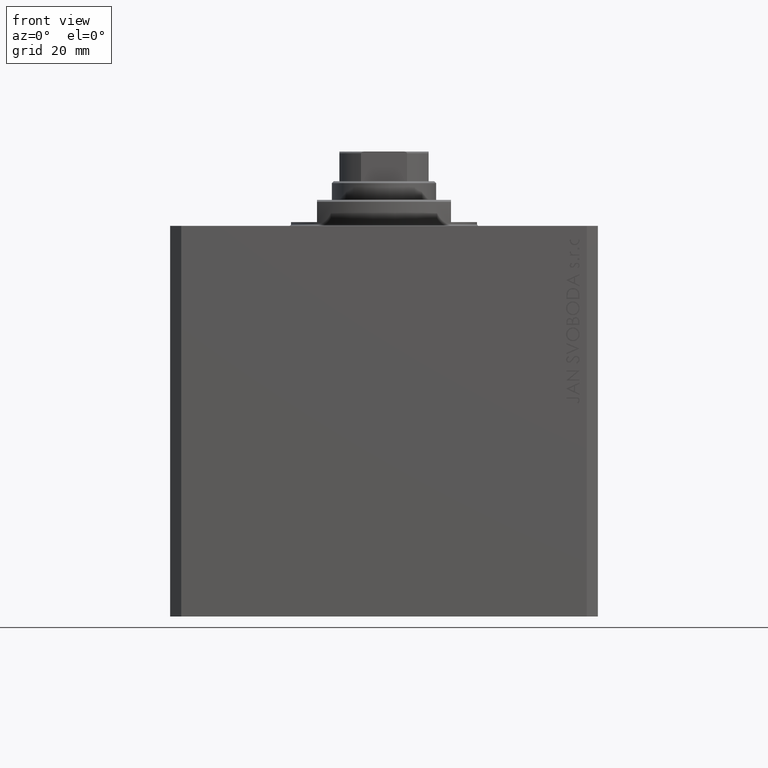
[diagram: clean part render]
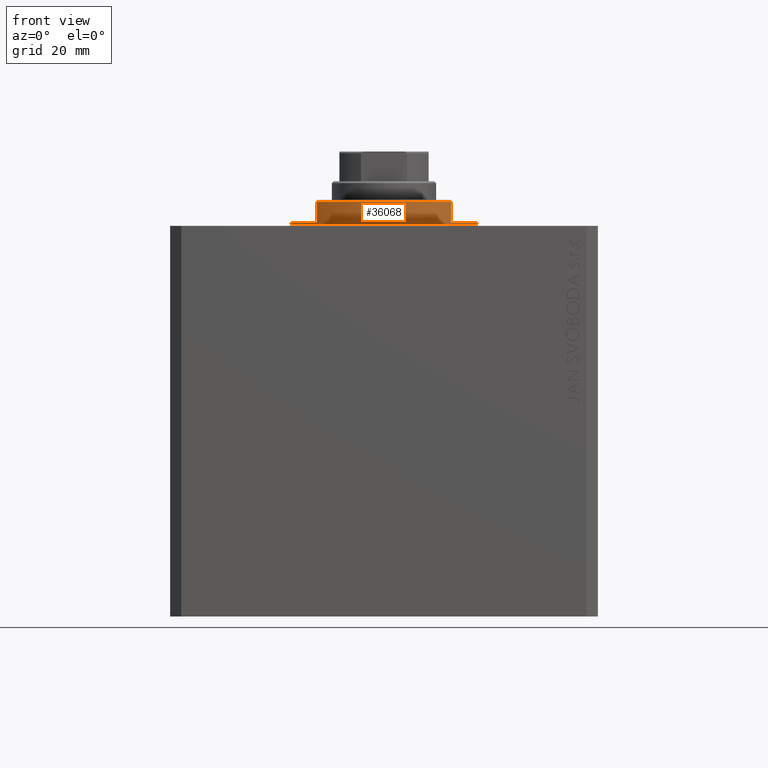
[diagram: same view with one face highlighted and labeled with its STEP entity id]
A machine part, front view. The second image highlights one B-rep face of the part: STEP entity #36068.
In plain terms, the highlighted cylindrical surface (partial cylindrical patch) has radius 25 mm, axis along (0, 0, -1).
Its self-contained STEP definition (entity closure, byte-faithful):
#206 = DIRECTION ( 'NONE',  ( 0.000000000000000000, 0.000000000000000000, -1.000000000000000000 ) ) ;
#396 = AXIS2_PLACEMENT_3D ( 'NONE', #11195, #206, #18812 ) ;
#851 = CARTESIAN_POINT ( 'NONE',  ( -25.00000000000000000, 3.061616997868383043E-15, -0.4999999999999995559 ) ) ;
#1342 = CARTESIAN_POINT ( 'NONE',  ( -18.00000000000000000, -17.34935157289747920, -6.499999999999956479 ) ) ;
#2783 = CIRCLE ( 'NONE', #8882, 25.00000000000000000 ) ;
#3353 = EDGE_CURVE ( 'NONE', #41942, #6463, #46763, .T. ) ;
#4204 = CARTESIAN_POINT ( 'NONE',  ( -18.00000000000000000, -17.34935157289747920, -1.000000000000000000 ) ) ;
#4375 = DIRECTION ( 'NONE',  ( 0.000000000000000000, 0.000000000000000000, -1.000000000000000000 ) ) ;
#4929 = CYLINDRICAL_SURFACE ( 'NONE', #16518, 25.00000000000000000 ) ;
#5080 = ORIENTED_EDGE ( 'NONE', *, *, #26432, .F. ) ;
#6448 = CARTESIAN_POINT ( 'NONE',  ( 25.00000000000000000, 0.000000000000000000, -7.000000000000000000 ) ) ;
#6463 = VERTEX_POINT ( 'NONE', #1342 ) ;
#6840 = VERTEX_POINT ( 'NONE', #17925 ) ;
#7414 = DIRECTION ( 'NONE',  ( 1.000000000000000000, 0.000000000000000000, 0.000000000000000000 ) ) ;
#8882 = AXIS2_PLACEMENT_3D ( 'NONE', #33951, #4375, #15350 ) ;
#9614 = VECTOR ( 'NONE', #9808, 1000.000000000000000 ) ;
#9808 = DIRECTION ( 'NONE',  ( -0.000000000000000000, -0.000000000000000000, 1.000000000000000000 ) ) ;
#11195 = CARTESIAN_POINT ( 'NONE',  ( 0.000000000000000000, 0.000000000000000000, -1.000000000000000000 ) ) ;
#11913 = ORIENTED_EDGE ( 'NONE', *, *, #41272, .T. ) ;
#11921 = CARTESIAN_POINT ( 'NONE',  ( 0.000000000000000000, 0.000000000000000000, -0.4999999999999995559 ) ) ;
#12408 = DIRECTION ( 'NONE',  ( -1.000000000000000000, 0.000000000000000000, 0.000000000000000000 ) ) ;
#12585 = EDGE_CURVE ( 'NONE', #18085, #22283, #22273, .T. ) ;
#13261 = CARTESIAN_POINT ( 'NONE',  ( 18.00000000000000000, -17.34935157289747920, -7.000000000000000000 ) ) ;
#13567 = VERTEX_POINT ( 'NONE', #38850 ) ;
#14056 = CARTESIAN_POINT ( 'NONE',  ( -18.00000000000000000, -17.34935157289747920, -7.000000000000000000 ) ) ;
#15350 = DIRECTION ( 'NONE',  ( -1.000000000000000000, 0.000000000000000000, 0.000000000000000000 ) ) ;
#15707 = EDGE_CURVE ( 'NONE', #23988, #22283, #21361, .T. ) ;
#15839 = ORIENTED_EDGE ( 'NONE', *, *, #15707, .F. ) ;
#16040 = ORIENTED_EDGE ( 'NONE', *, *, #32816, .F. ) ;
#16518 = AXIS2_PLACEMENT_3D ( 'NONE', #19968, #34282, #19490 ) ;
#17771 = VECTOR ( 'NONE', #43313, 1000.000000000000000 ) ;
#17925 = CARTESIAN_POINT ( 'NONE',  ( 18.00000000000000000, -17.34935157289747920, -1.000000000000000000 ) ) ;
#18085 = VERTEX_POINT ( 'NONE', #39398 ) ;
#18812 = DIRECTION ( 'NONE',  ( -1.000000000000000000, 0.000000000000000000, 0.000000000000000000 ) ) ;
#19490 = DIRECTION ( 'NONE',  ( 1.000000000000000000, 0.000000000000000000, 0.000000000000000000 ) ) ;
#19968 = CARTESIAN_POINT ( 'NONE',  ( 0.000000000000000000, 0.000000000000000000, -7.000000000000000000 ) ) ;
#21361 = LINE ( 'NONE', #32812, #17771 ) ;
#22273 = CIRCLE ( 'NONE', #33677, 25.00000000000000000 ) ;
#22283 = VERTEX_POINT ( 'NONE', #851 ) ;
#22686 = CARTESIAN_POINT ( 'NONE',  ( 0.000000000000000000, 0.000000000000000000, -6.499999999999958256 ) ) ;
#23568 = ORIENTED_EDGE ( 'NONE', *, *, #34971, .T. ) ;
#23988 = VERTEX_POINT ( 'NONE', #40572 ) ;
#25034 = CIRCLE ( 'NONE', #41788, 25.00000000000000000 ) ;
#26432 = EDGE_CURVE ( 'NONE', #41942, #23988, #2783, .T. ) ;
#26655 = VECTOR ( 'NONE', #28614, 1000.000000000000000 ) ;
#27690 = LINE ( 'NONE', #6448, #9614 ) ;
#27808 = DIRECTION ( 'NONE',  ( 0.000000000000000000, 0.000000000000000000, -1.000000000000000000 ) ) ;
#28614 = DIRECTION ( 'NONE',  ( 0.000000000000000000, 0.000000000000000000, -1.000000000000000000 ) ) ;
#29496 = VECTOR ( 'NONE', #27808, 1000.000000000000000 ) ;
#31402 = LINE ( 'NONE', #13261, #29496 ) ;
#32666 = ORIENTED_EDGE ( 'NONE', *, *, #3353, .T. ) ;
#32812 = CARTESIAN_POINT ( 'NONE',  ( -25.00000000000000000, 3.061616997868383043E-15, -7.000000000000000000 ) ) ;
#32816 = EDGE_CURVE ( 'NONE', #36252, #6840, #33912, .T. ) ;
#33677 = AXIS2_PLACEMENT_3D ( 'NONE', #11921, #37228, #7414 ) ;
#33912 = CIRCLE ( 'NONE', #396, 25.00000000000000000 ) ;
#33951 = CARTESIAN_POINT ( 'NONE',  ( 0.000000000000000000, 0.000000000000000000, -1.000000000000000000 ) ) ;
#34282 = DIRECTION ( 'NONE',  ( -0.000000000000000000, -0.000000000000000000, 1.000000000000000000 ) ) ;
#34971 = EDGE_CURVE ( 'NONE', #36252, #18085, #27690, .T. ) ;
#36068 = ADVANCED_FACE ( 'NONE', ( #41218 ), #4929, .T. ) ;
#36252 = VERTEX_POINT ( 'NONE', #45269 ) ;
#37133 = EDGE_CURVE ( 'NONE', #6840, #13567, #31402, .T. ) ;
#37228 = DIRECTION ( 'NONE',  ( -0.000000000000000000, -0.000000000000000000, -1.000000000000000000 ) ) ;
#37253 = DIRECTION ( 'NONE',  ( 0.000000000000000000, 0.000000000000000000, 1.000000000000000000 ) ) ;
#38850 = CARTESIAN_POINT ( 'NONE',  ( 18.00000000000000000, -17.34935157289747920, -6.499999999999958256 ) ) ;
#39398 = CARTESIAN_POINT ( 'NONE',  ( 25.00000000000000000, 0.000000000000000000, -0.4999999999999995559 ) ) ;
#40572 = CARTESIAN_POINT ( 'NONE',  ( -25.00000000000000000, 3.061616997868383043E-15, -1.000000000000000000 ) ) ;
#41218 = FACE_OUTER_BOUND ( 'NONE', #44332, .T. ) ;
#41272 = EDGE_CURVE ( 'NONE', #6463, #13567, #25034, .T. ) ;
#41788 = AXIS2_PLACEMENT_3D ( 'NONE', #22686, #37253, #12408 ) ;
#41942 = VERTEX_POINT ( 'NONE', #4204 ) ;
#43313 = DIRECTION ( 'NONE',  ( -0.000000000000000000, -0.000000000000000000, 1.000000000000000000 ) ) ;
#44101 = ORIENTED_EDGE ( 'NONE', *, *, #12585, .T. ) ;
#44332 = EDGE_LOOP ( 'NONE', ( #15839, #5080, #32666, #11913, #44970, #16040, #23568, #44101 ) ) ;
#44970 = ORIENTED_EDGE ( 'NONE', *, *, #37133, .F. ) ;
#45269 = CARTESIAN_POINT ( 'NONE',  ( 25.00000000000000000, 0.000000000000000000, -1.000000000000000000 ) ) ;
#46763 = LINE ( 'NONE', #14056, #26655 ) ;